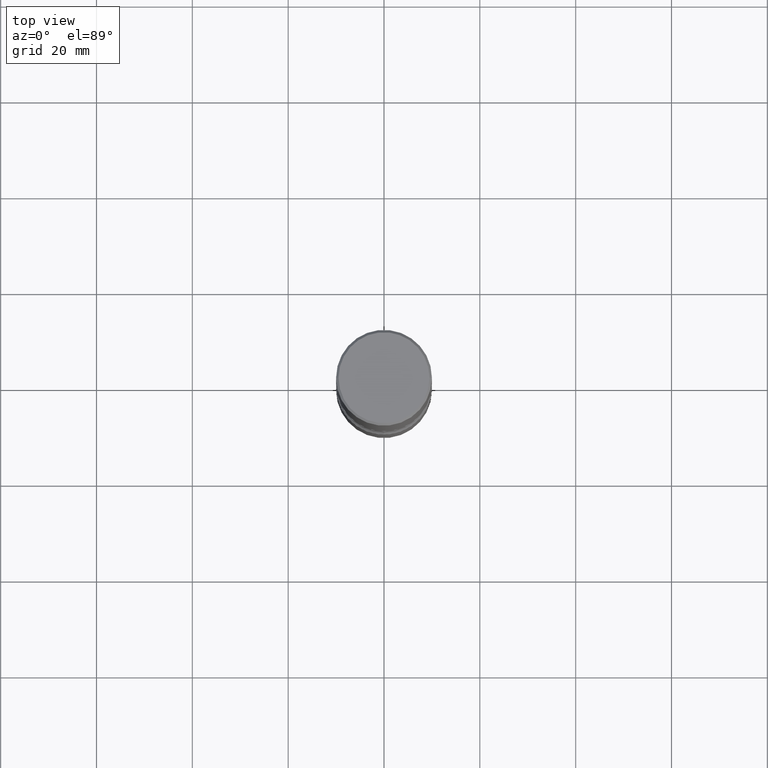
[diagram: clean part render]
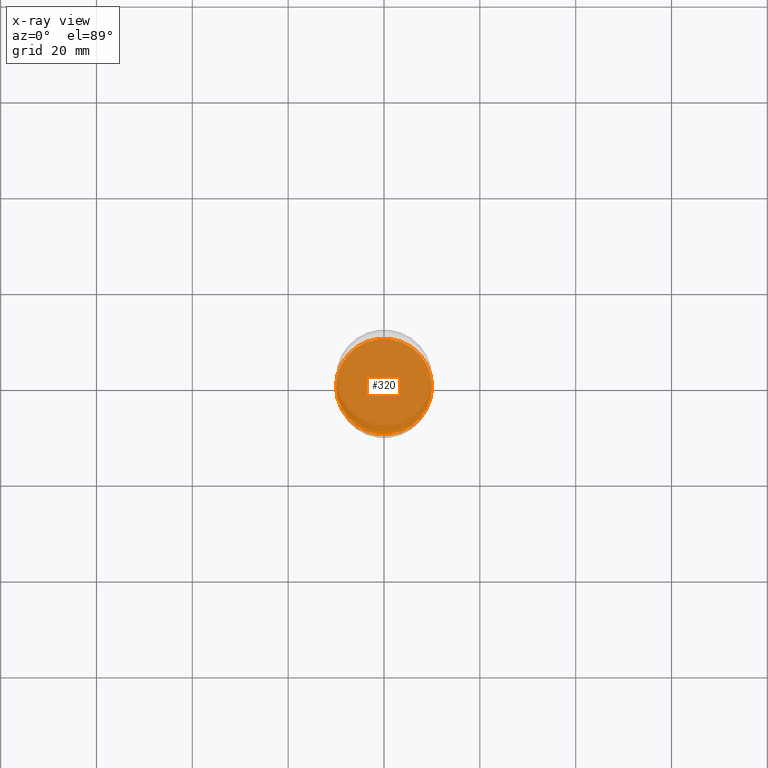
[diagram: x-ray — body ghosted, one internal face saturated and labeled with its STEP entity id]
A machine part, top view, then the same camera in x-ray: the body is ghosted and one INTERNAL B-rep face — a face not visible from any outside direction — is saturated and labeled: STEP entity #320.
In plain terms, the highlighted planar face has unit normal (0, -0, -1).
Its self-contained STEP definition (entity closure, byte-faithful):
#2 = ORIENTED_EDGE ( 'NONE', *, *, #337, .T. ) ;
#20 = VERTEX_POINT ( 'NONE', #279 ) ;
#33 = AXIS2_PLACEMENT_3D ( 'NONE', #297, #480, #252 ) ;
#73 = EDGE_CURVE ( 'NONE', #304, #20, #181, .T. ) ;
#79 = EDGE_LOOP ( 'NONE', ( #140, #2 ) ) ;
#121 = CARTESIAN_POINT ( 'NONE',  ( 1.030178189293550378E-28, -1.470821428801063089E-14, -4.212599999999998346 ) ) ;
#140 = ORIENTED_EDGE ( 'NONE', *, *, #73, .T. ) ;
#181 = CIRCLE ( 'NONE', #296, 0.3937000000000002720 ) ;
#238 = CARTESIAN_POINT ( 'NONE',  ( 1.030178189293550378E-28, -1.470821428801063089E-14, -4.212599999999998346 ) ) ;
#252 = DIRECTION ( 'NONE',  ( 1.000000000000000000, -6.982962677686269077E-15, 0.000000000000000000 ) ) ;
#279 = CARTESIAN_POINT ( 'NONE',  ( -0.3937000000000002720, -1.476299864302407750E-14, -4.212599999999998346 ) ) ;
#291 = DIRECTION ( 'NONE',  ( 2.438088387897960049E-29, -3.491481338843145188E-15, -1.000000000000000000 ) ) ;
#296 = AXIS2_PLACEMENT_3D ( 'NONE', #238, #463, #379 ) ;
#297 = CARTESIAN_POINT ( 'NONE',  ( 1.030178189293550378E-28, -1.470821428801063089E-14, -4.212599999999998346 ) ) ;
#304 = VERTEX_POINT ( 'NONE', #346 ) ;
#320 = ADVANCED_FACE ( 'NONE', ( #514 ), #519, .F. ) ;
#335 = AXIS2_PLACEMENT_3D ( 'NONE', #121, #291, #473 ) ;
#337 = EDGE_CURVE ( 'NONE', #20, #304, #386, .T. ) ;
#346 = CARTESIAN_POINT ( 'NONE',  ( 0.3937000000000002720, -1.745740669421571411E-14, -4.212599999999998346 ) ) ;
#379 = DIRECTION ( 'NONE',  ( 1.000000000000000000, -6.982962677686269077E-15, 0.000000000000000000 ) ) ;
#386 = CIRCLE ( 'NONE', #33, 0.3937000000000002720 ) ;
#463 = DIRECTION ( 'NONE',  ( -2.445468806185136597E-29, 3.491481338843145583E-15, 1.000000000000000000 ) ) ;
#473 = DIRECTION ( 'NONE',  ( -1.000000000000000000, 6.982962677686265922E-15, -4.876176775795935793E-29 ) ) ;
#480 = DIRECTION ( 'NONE',  ( -2.445468806185136597E-29, 3.491481338843145583E-15, 1.000000000000000000 ) ) ;
#514 = FACE_OUTER_BOUND ( 'NONE', #79, .T. ) ;
#519 = PLANE ( 'NONE',  #335 ) ;